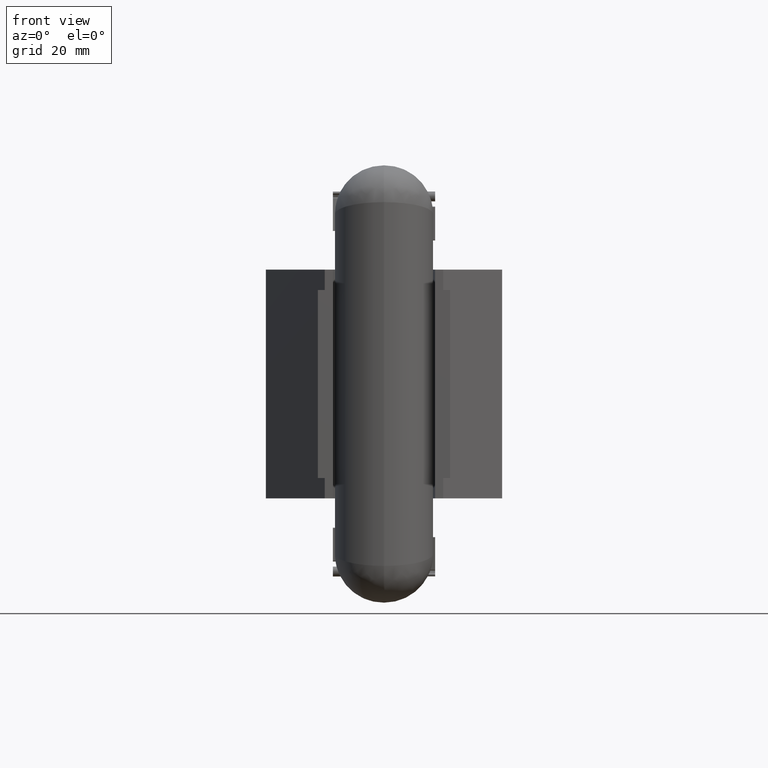
[diagram: clean part render]
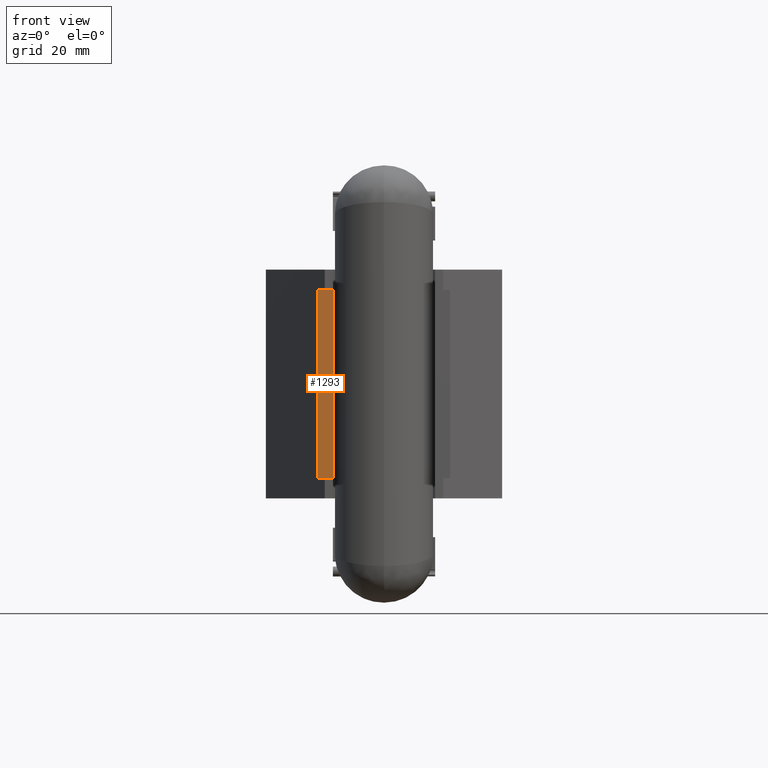
[diagram: same view with one face highlighted and labeled with its STEP entity id]
A machine part, front view. The second image highlights one B-rep face of the part: STEP entity #1293.
In plain terms, the highlighted planar face has unit normal (0, -1, 0).
Its self-contained STEP definition (entity closure, byte-faithful):
#1074=PLANE('',#8682);
#1293=ADVANCED_FACE('',(#1811),#1074,.T.);
#1811=FACE_OUTER_BOUND('',#2249,.T.);
#2249=EDGE_LOOP('',(#2860,#2861,#2862,#2863));
#2860=ORIENTED_EDGE('',*,*,#6214,.F.);
#2861=ORIENTED_EDGE('',*,*,#6215,.T.);
#2862=ORIENTED_EDGE('',*,*,#6216,.T.);
#2863=ORIENTED_EDGE('',*,*,#6217,.T.);
#5380=VERTEX_POINT('',#10810);
#5381=VERTEX_POINT('',#10811);
#5382=VERTEX_POINT('',#10813);
#5383=VERTEX_POINT('',#10815);
#6214=EDGE_CURVE('',#5380,#5381,#7472,.T.);
#6215=EDGE_CURVE('',#5380,#5382,#7473,.T.);
#6216=EDGE_CURVE('',#5382,#5383,#7474,.T.);
#6217=EDGE_CURVE('',#5383,#5381,#7475,.T.);
#7472=LINE('',#10809,#7998);
#7473=LINE('',#10812,#7999);
#7474=LINE('',#10814,#8000);
#7475=LINE('',#10816,#8001);
#7998=VECTOR('',#9173,1.);
#7999=VECTOR('',#9174,1.);
#8000=VECTOR('',#9175,1.);
#8001=VECTOR('',#9176,1.);
#8682=AXIS2_PLACEMENT_3D('',#10817,#9177,#9178);
#9173=DIRECTION('',(1.,1.19636101791504E-16,0.));
#9174=DIRECTION('',(0.,0.,-1.));
#9175=DIRECTION('',(1.,1.19636101791504E-16,0.));
#9176=DIRECTION('',(0.,0.,1.));
#9177=DIRECTION('',(1.19636101791504E-16,-1.,0.));
#9178=DIRECTION('',(1.,1.196959198424E-16,0.));
#10809=CARTESIAN_POINT('',(29.,2.,23.));
#10810=CARTESIAN_POINT('',(-16.1781992623546,1.99999999999999,23.));
#10811=CARTESIAN_POINT('',(-12.5,2.,23.));
#10812=CARTESIAN_POINT('',(-16.1781992623546,1.99999999999999,23.));
#10813=CARTESIAN_POINT('',(-16.1781992623546,1.99999999999999,-23.));
#10814=CARTESIAN_POINT('',(29.,2.,-23.));
#10815=CARTESIAN_POINT('',(-12.5,2.,-23.));
#10816=CARTESIAN_POINT('',(-12.5,2.,28.));
#10817=CARTESIAN_POINT('',(29.,2.,23.));